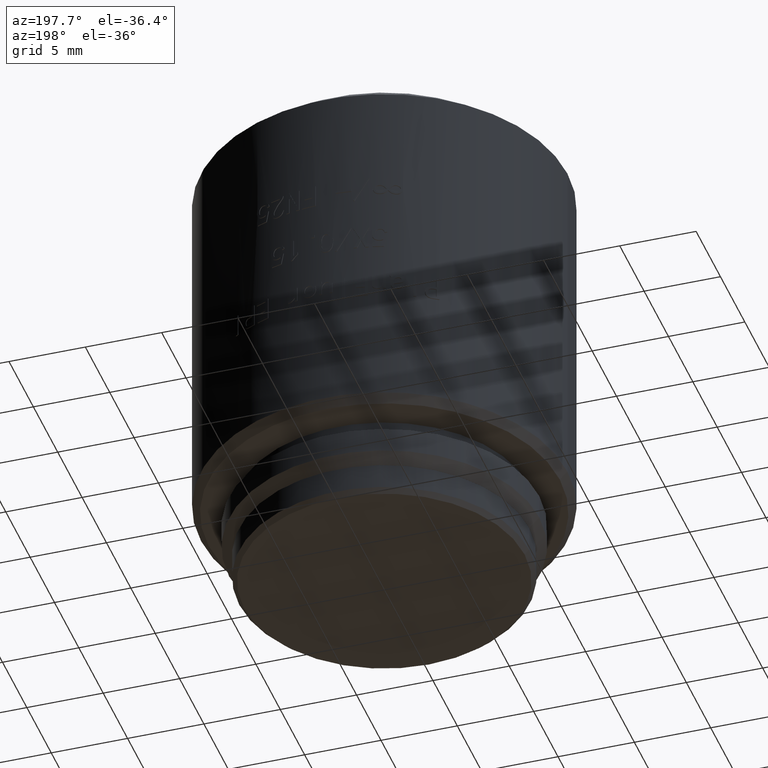
[diagram: clean part render]
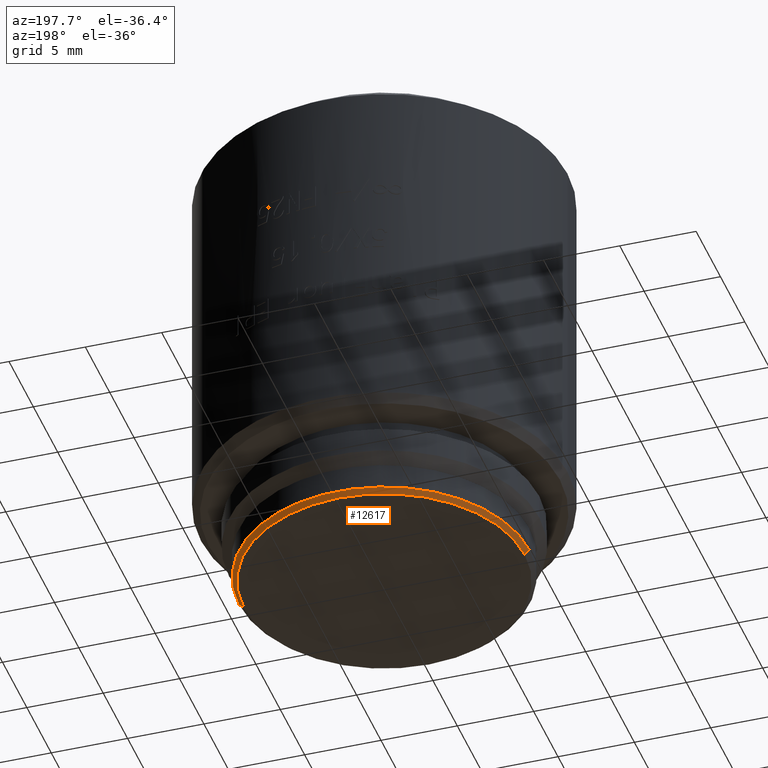
[diagram: same view with one face highlighted and labeled with its STEP entity id]
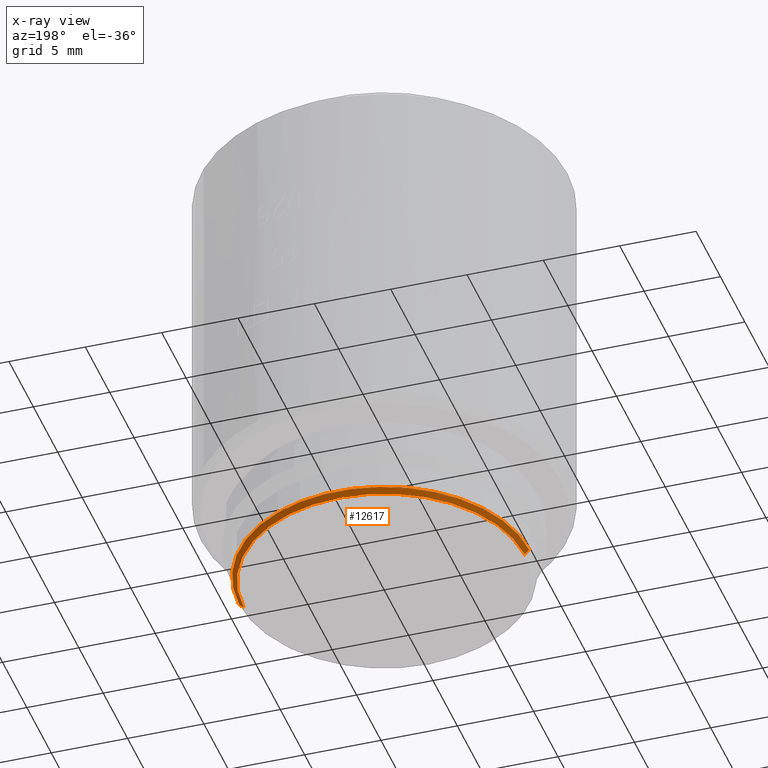
[diagram: x-ray of the same camera — body ghosted, the highlighted face saturated]
A machine part, auxiliary view. The second image highlights one B-rep face of the part: STEP entity #12617.
The next image is the same camera in x-ray: the body ghosted, the highlighted face saturated — about 0% of this face is hidden behind the body in this view.
In plain terms, the highlighted conical surface has half-angle 45 deg.
Its self-contained STEP definition (entity closure, byte-faithful):
#597 = CONICAL_SURFACE ( 'NONE', #5289, 9.199999999999999289, 0.7853981633974476129 ) ;
#1125 = ORIENTED_EDGE ( 'NONE', *, *, #14842, .F. ) ;
#2353 = EDGE_CURVE ( 'NONE', #3731, #11248, #15155, .T. ) ;
#2659 = DIRECTION ( 'NONE',  ( 0.000000000000000000, 0.000000000000000000, 1.000000000000000000 ) ) ;
#3731 = VERTEX_POINT ( 'NONE', #12438 ) ;
#3738 = DIRECTION ( 'NONE',  ( 0.000000000000000000, 0.000000000000000000, 1.000000000000000000 ) ) ;
#5131 = CARTESIAN_POINT ( 'NONE',  ( 9.199999999999999289, 0.000000000000000000, 0.000000000000000000 ) ) ;
#5289 = AXIS2_PLACEMENT_3D ( 'NONE', #11742, #2659, #5607 ) ;
#5607 = DIRECTION ( 'NONE',  ( 1.000000000000000000, 0.000000000000000000, 0.000000000000000000 ) ) ;
#6388 = VERTEX_POINT ( 'NONE', #5131 ) ;
#7871 = EDGE_CURVE ( 'NONE', #14096, #11248, #11468, .T. ) ;
#8407 = CIRCLE ( 'NONE', #11218, 9.199999999999999289 ) ;
#8688 = ORIENTED_EDGE ( 'NONE', *, *, #7871, .F. ) ;
#9631 = CARTESIAN_POINT ( 'NONE',  ( -9.500000000000007105, 1.163414459189986274E-15, 0.3000000000000069833 ) ) ;
#10089 = FACE_OUTER_BOUND ( 'NONE', #12803, .T. ) ;
#10120 = DIRECTION ( 'NONE',  ( 0.7071067811865470176, 0.000000000000000000, 0.7071067811865480168 ) ) ;
#10547 = CARTESIAN_POINT ( 'NONE',  ( 9.500000000000007105, 0.000000000000000000, 0.3000000000000069833 ) ) ;
#11218 = AXIS2_PLACEMENT_3D ( 'NONE', #18747, #11537, #19122 ) ;
#11248 = VERTEX_POINT ( 'NONE', #9631 ) ;
#11468 = CIRCLE ( 'NONE', #19234, 9.500000000000000000 ) ;
#11537 = DIRECTION ( 'NONE',  ( 0.000000000000000000, 0.000000000000000000, -1.000000000000000000 ) ) ;
#11742 = CARTESIAN_POINT ( 'NONE',  ( 0.000000000000000000, 0.000000000000000000, 0.000000000000000000 ) ) ;
#12438 = CARTESIAN_POINT ( 'NONE',  ( -9.199999999999999289, 1.145044757202775647E-15, 0.000000000000000000 ) ) ;
#12536 = CARTESIAN_POINT ( 'NONE',  ( 0.000000000000000000, 0.000000000000000000, 0.3000000000000069833 ) ) ;
#12617 = ADVANCED_FACE ( 'NONE', ( #10089 ), #597, .T. ) ;
#12697 = VECTOR ( 'NONE', #10120, 1000.000000000000000 ) ;
#12803 = EDGE_LOOP ( 'NONE', ( #13112, #13040, #8688, #1125 ) ) ;
#12943 = CARTESIAN_POINT ( 'NONE',  ( 9.199999999999999289, 0.000000000000000000, 0.000000000000000000 ) ) ;
#13040 = ORIENTED_EDGE ( 'NONE', *, *, #2353, .T. ) ;
#13083 = VECTOR ( 'NONE', #18263, 1000.000000000000000 ) ;
#13112 = ORIENTED_EDGE ( 'NONE', *, *, #16814, .F. ) ;
#14096 = VERTEX_POINT ( 'NONE', #10547 ) ;
#14842 = EDGE_CURVE ( 'NONE', #6388, #14096, #17615, .T. ) ;
#15155 = LINE ( 'NONE', #17967, #13083 ) ;
#15652 = DIRECTION ( 'NONE',  ( 1.000000000000000000, 0.000000000000000000, 0.000000000000000000 ) ) ;
#16814 = EDGE_CURVE ( 'NONE', #3731, #6388, #8407, .T. ) ;
#17615 = LINE ( 'NONE', #12943, #12697 ) ;
#17967 = CARTESIAN_POINT ( 'NONE',  ( -9.199999999999999289, 1.126675055215564822E-15, 0.000000000000000000 ) ) ;
#18263 = DIRECTION ( 'NONE',  ( -0.7071067811865470176, 8.659560562354926695E-17, 0.7071067811865480168 ) ) ;
#18747 = CARTESIAN_POINT ( 'NONE',  ( 0.000000000000000000, 0.000000000000000000, 0.000000000000000000 ) ) ;
#19122 = DIRECTION ( 'NONE',  ( 1.000000000000000000, 0.000000000000000000, 0.000000000000000000 ) ) ;
#19234 = AXIS2_PLACEMENT_3D ( 'NONE', #12536, #3738, #15652 ) ;